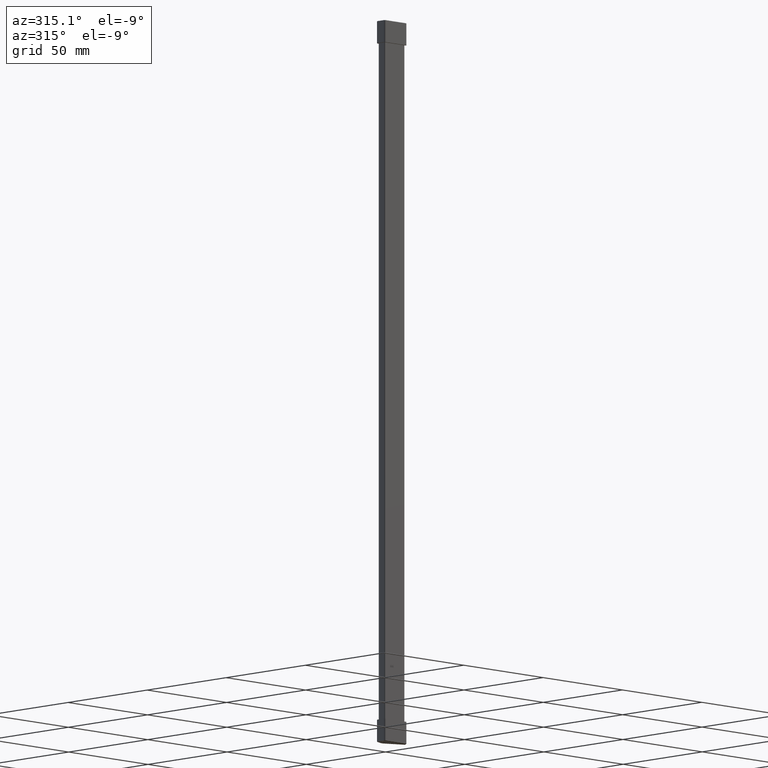
[diagram: clean part render]
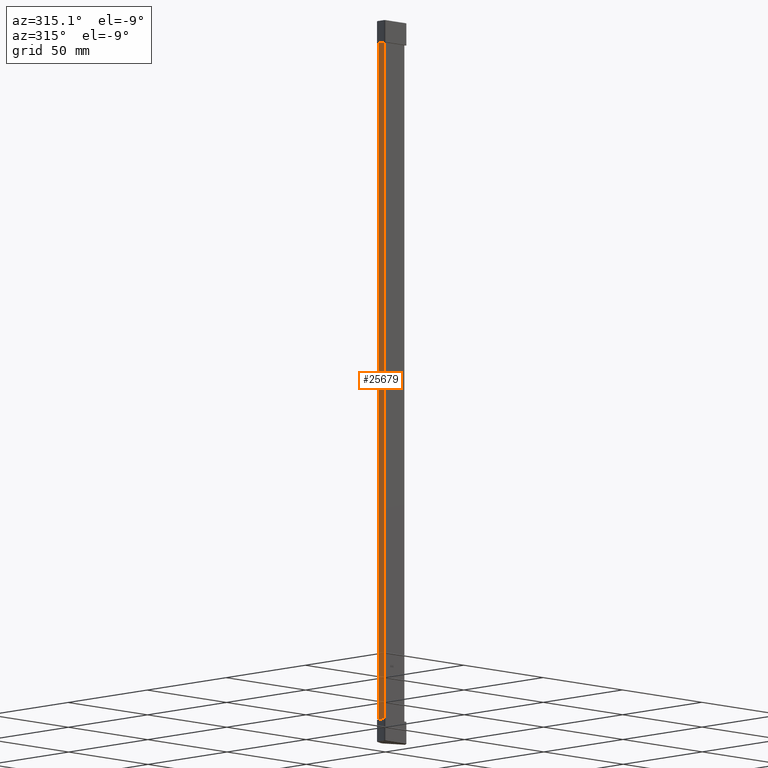
[diagram: same view with one face highlighted and labeled with its STEP entity id]
A machine part, auxiliary view. The second image highlights one B-rep face of the part: STEP entity #25679.
In plain terms, the highlighted planar face has unit normal (1, 0, -0).
Its self-contained STEP definition (entity closure, byte-faithful):
#3868 = CARTESIAN_POINT ( 'NONE',  ( -0.4999998419835438600, 3.615511274208506700, -95.90000000000000600 ) ) ;
#3869 = CARTESIAN_POINT ( 'NONE',  ( -0.4999998735868457800, 3.615511274208506300, 209.9000000000000100 ) ) ;
#4586 = CARTESIAN_POINT ( 'NONE',  ( -0.4999998198518690300, 0.4999999950274183200, -95.89999999999999100 ) ) ;
#4628 = CARTESIAN_POINT ( 'NONE',  ( -0.4999998198518690300, 0.4999999957377868100, 209.9000000000000100 ) ) ;
#6733 = CARTESIAN_POINT ( 'NONE',  ( -0.4999997117630233800, -5.682891657254884900E-009, -95.90000000000000600 ) ) ;
#6738 = DIRECTION ( 'NONE',  ( 1.522599007603421600E-056, 1.000000000000000000, -3.939912114750718000E-031 ) ) ;
#6742 = LINE ( 'NONE', #6733, #26474 ) ;
#6773 = DIRECTION ( 'NONE',  ( -1.522599007603421600E-056, -1.000000000000000000, -3.939912114750718000E-031 ) ) ;
#6793 = LINE ( 'NONE', #6798, #26560 ) ;
#6798 = CARTESIAN_POINT ( 'NONE',  ( -0.4999997471736403200, -5.682891657254884900E-009, 209.9000000000000100 ) ) ;
#14103 = EDGE_LOOP ( 'NONE', ( #23895, #23885, #23918, #23897 ) ) ;
#21950 = LINE ( 'NONE', #21951, #26416 ) ;
#21951 = CARTESIAN_POINT ( 'NONE',  ( -0.5000000000000559600, 3.615511274208507600, 219.0000000000000000 ) ) ;
#21957 = DIRECTION ( 'NONE',  ( 0.0000000000000000000, 0.0000000000000000000, 1.000000000000000000 ) ) ;
#22051 = LINE ( 'NONE', #22052, #26499 ) ;
#22052 = CARTESIAN_POINT ( 'NONE',  ( -0.4999999999999449300, 0.5000000000000004400, 219.0000000000000000 ) ) ;
#22059 = DIRECTION ( 'NONE',  ( -0.0000000000000000000, -0.0000000000000000000, -1.000000000000000000 ) ) ;
#22096 = FACE_OUTER_BOUND ( 'NONE', #14103, .T. ) ;
#22097 = DIRECTION ( 'NONE',  ( -3.563533965728333600E-014, 1.000000000000000000, 0.0000000000000000000 ) ) ;
#22101 = DIRECTION ( 'NONE',  ( 1.000000000000000000, 3.563533965728333600E-014, -0.0000000000000000000 ) ) ;
#22118 = PLANE ( 'NONE',  #26492 ) ;
#22128 = CARTESIAN_POINT ( 'NONE',  ( -0.5000000000000559600, 3.615511274208504900, 219.0000000000000000 ) ) ;
#23885 = ORIENTED_EDGE ( 'NONE', *, *, #25697, .F. ) ;
#23895 = ORIENTED_EDGE ( 'NONE', *, *, #25645, .F. ) ;
#23897 = ORIENTED_EDGE ( 'NONE', *, *, #25715, .F. ) ;
#23918 = ORIENTED_EDGE ( 'NONE', *, *, #25670, .F. ) ;
#25645 = EDGE_CURVE ( 'NONE', #27487, #27478, #21950, .T. ) ;
#25670 = EDGE_CURVE ( 'NONE', #28785, #28791, #22051, .T. ) ;
#25679 = ADVANCED_FACE ( 'NONE', ( #22096 ), #22118, .F. ) ;
#25697 = EDGE_CURVE ( 'NONE', #28791, #27487, #6742, .T. ) ;
#25715 = EDGE_CURVE ( 'NONE', #27478, #28785, #6793, .T. ) ;
#26416 = VECTOR ( 'NONE', #21957, 1000.000000000000000 ) ;
#26474 = VECTOR ( 'NONE', #6738, 1000.000000000000000 ) ;
#26492 = AXIS2_PLACEMENT_3D ( 'NONE', #22128, #22101, #22097 ) ;
#26499 = VECTOR ( 'NONE', #22059, 1000.000000000000000 ) ;
#26560 = VECTOR ( 'NONE', #6773, 1000.000000000000000 ) ;
#27478 = VERTEX_POINT ( 'NONE', #3869 ) ;
#27487 = VERTEX_POINT ( 'NONE', #3868 ) ;
#28785 = VERTEX_POINT ( 'NONE', #4628 ) ;
#28791 = VERTEX_POINT ( 'NONE', #4586 ) ;